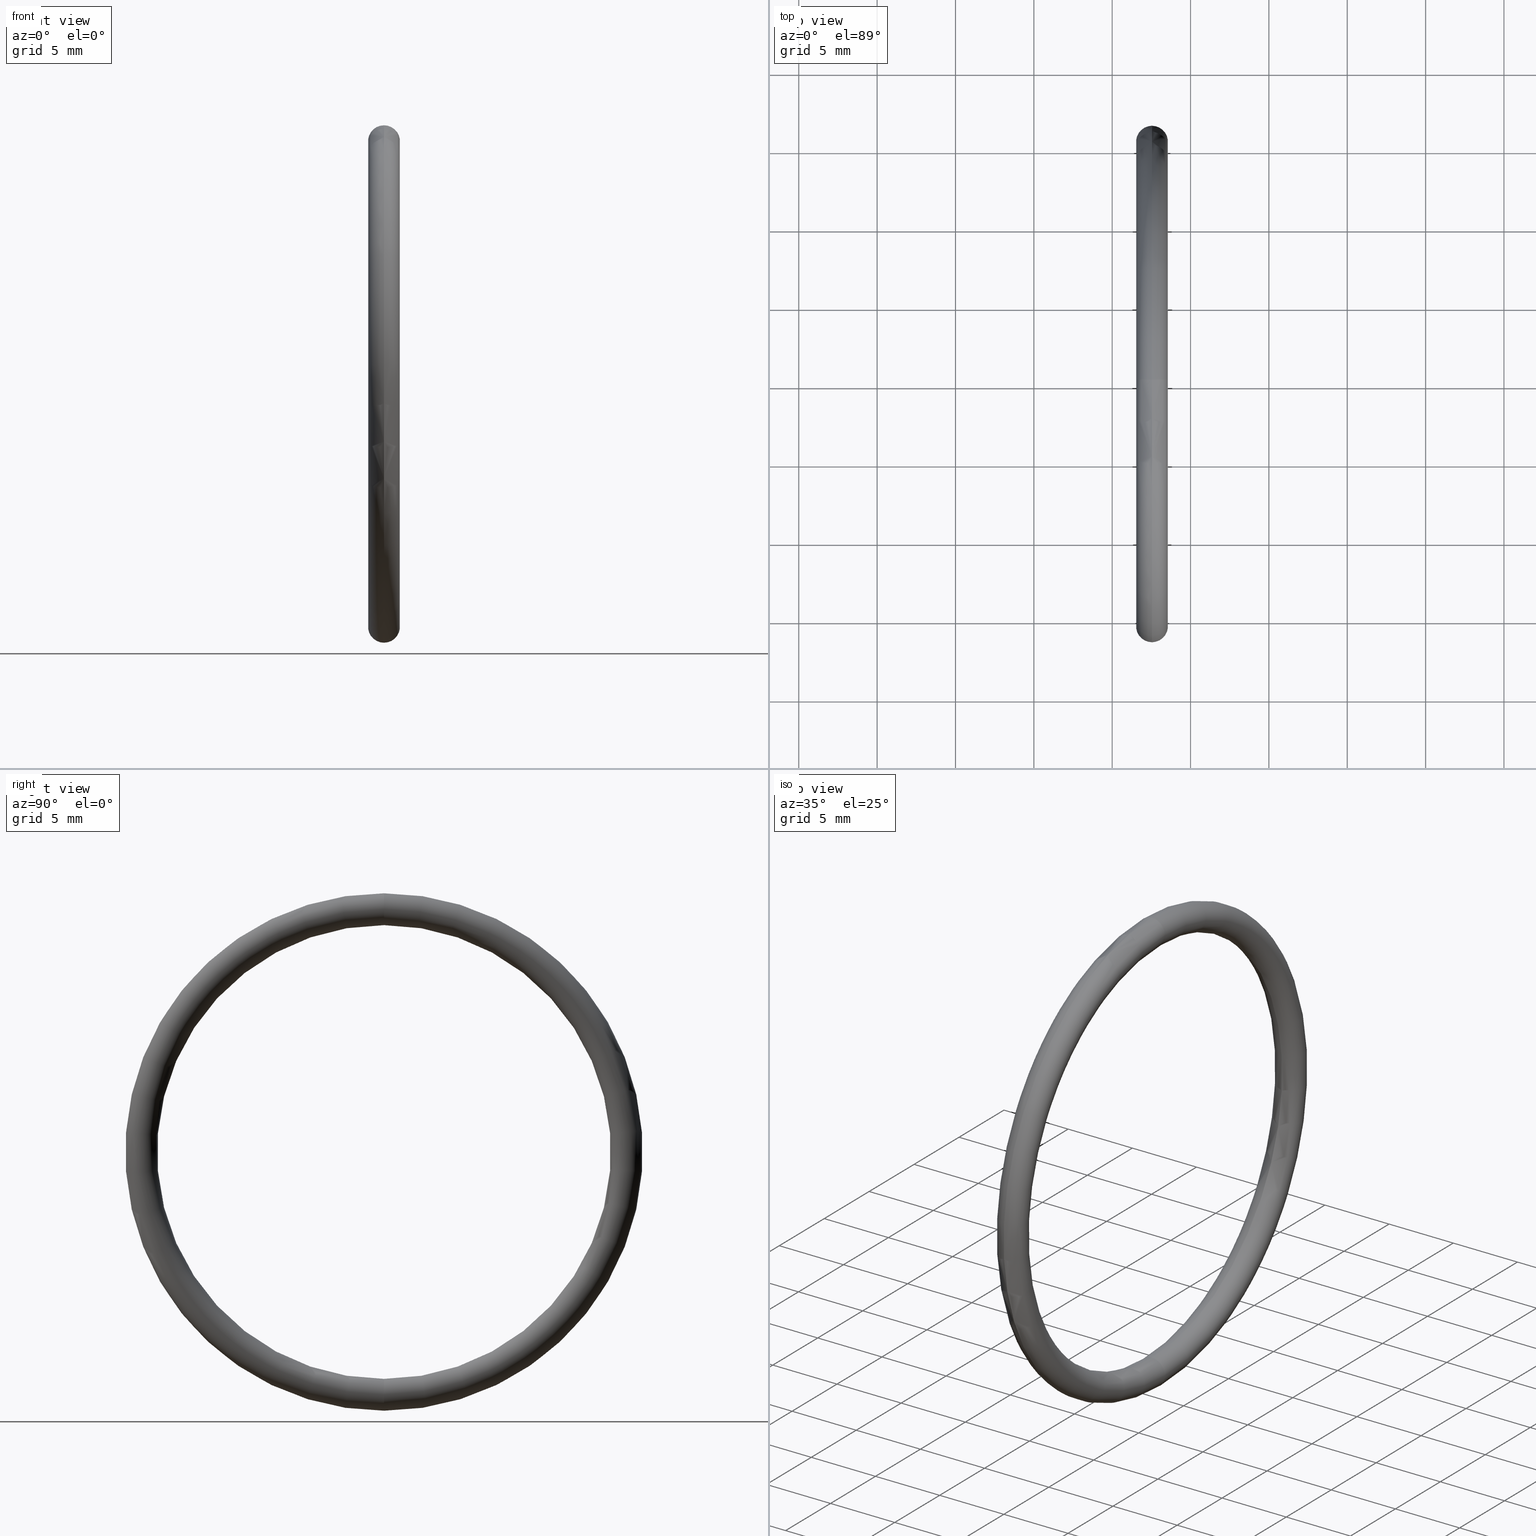
[diagram: canonical four-view strip — front | top / right | iso, engineering-drawing reading convention]
A machine part, canonical four-view strip (front | top / right | iso — engineering-drawing reading convention). The complete STEP part file that produces these views, byte-faithful:
ISO-10303-21;
HEADER;
FILE_DESCRIPTION (( 'STEP AP203' ),
    '1' );
FILE_NAME ('OR-10-BN.STEP',
    '2008-03-29T09:32:36',
    ( 'Baystate-05' ),
    ( 'BayState InfoTech' ),
    'SwSTEP 2.0',
    'SolidWorks 2007',
    '' );
FILE_SCHEMA (( 'CONFIG_CONTROL_DESIGN' ));
ENDSEC;

DATA;
#1 = EDGE_CURVE ( 'NONE', #60, #59, #43, .T. ) ;
#2 = ADVANCED_FACE ( 'NONE', ( #44 ), #15, .T. ) ;
#3 = EDGE_LOOP ( 'NONE', ( #58, #4, #63, #10 ) ) ;
#4 = ORIENTED_EDGE ( 'NONE', *, *, #25, .T. ) ;
#5 = EDGE_LOOP ( 'NONE', ( #6, #7, #18, #13 ) ) ;
#6 = ORIENTED_EDGE ( 'NONE', *, *, #23, .F. ) ;
#7 = ORIENTED_EDGE ( 'NONE', *, *, #17, .F. ) ;
#8 = ADVANCED_BREP_SHAPE_REPRESENTATION ( 'OR-10-BN', ( #19, #74 ), #9 ) ;
#9 =( GEOMETRIC_REPRESENTATION_CONTEXT ( 3 ) GLOBAL_UNCERTAINTY_ASSIGNED_CONTEXT ( ( #54 ) ) GLOBAL_UNIT_ASSIGNED_CONTEXT ( ( #57, #56, #55 ) ) REPRESENTATION_CONTEXT ( 'NONE', 'WORKASPACE' ) );
#10 = ORIENTED_EDGE ( 'NONE', *, *, #11, .F. ) ;
#11 = EDGE_CURVE ( 'NONE', #60, #65, #35, .T. ) ;
#12 = EDGE_LOOP ( 'NONE', ( #21, #22, #75, #76 ) ) ;
#13 = ORIENTED_EDGE ( 'NONE', *, *, #1, .T. ) ;
#14 = AXIS2_PLACEMENT_3D ( 'NONE', #16, #38, #37 ) ;
#15 = TOROIDAL_SURFACE ( 'NONE', #14, 0.6099999999999998800, 0.03999999999999996600 ) ;
#16 = CARTESIAN_POINT ( 'NONE',  ( 0.1000000000000000700, 0.0000000000000000000, 0.0000000000000000000 ) ) ;
#17 = EDGE_CURVE ( 'NONE', #65, #24, #100, .T. ) ;
#18 = ORIENTED_EDGE ( 'NONE', *, *, #77, .T. ) ;
#19 = MANIFOLD_SOLID_BREP ( 'NONE', #62 ) ;
#20 = ADVANCED_FACE ( 'NONE', ( #101 ), #70, .T. ) ;
#21 = ORIENTED_EDGE ( 'NONE', *, *, #64, .F. ) ;
#22 = ORIENTED_EDGE ( 'NONE', *, *, #23, .T. ) ;
#23 = EDGE_CURVE ( 'NONE', #24, #59, #53, .T. ) ;
#24 = VERTEX_POINT ( 'NONE', #48 ) ;
#25 = EDGE_CURVE ( 'NONE', #59, #24, #47, .T. ) ;
#26 = TOROIDAL_SURFACE ( 'NONE', #95, 0.6099999999999998800, 0.03999999999999996600 ) ;
#27 = FACE_OUTER_BOUND ( 'NONE', #3, .T. ) ;
#28 = DIRECTION ( 'NONE',  ( 0.0000000000000000000, 0.0000000000000000000, 1.000000000000000000 ) ) ;
#29 = DIRECTION ( 'NONE',  ( -1.000000000000000000, 0.0000000000000000000, 0.0000000000000000000 ) ) ;
#30 = CARTESIAN_POINT ( 'NONE',  ( 0.1000000000000000700, 0.0000000000000000000, 0.0000000000000000000 ) ) ;
#31 = AXIS2_PLACEMENT_3D ( 'NONE', #30, #29, #28 ) ;
#32 = DIRECTION ( 'NONE',  ( -1.000000000000000000, 0.0000000000000000000, 0.0000000000000000000 ) ) ;
#33 = CARTESIAN_POINT ( 'NONE',  ( 0.1000000000000000700, 0.0000000000000000000, 0.0000000000000000000 ) ) ;
#34 = AXIS2_PLACEMENT_3D ( 'NONE', #33, #32, #102 ) ;
#35 = CIRCLE ( 'NONE', #34, 0.5699999999999999500 ) ;
#36 = CARTESIAN_POINT ( 'NONE',  ( 0.1000000000000000700, 0.0000000000000000000, 0.6099999999999998800 ) ) ;
#37 = DIRECTION ( 'NONE',  ( 0.0000000000000000000, 0.0000000000000000000, 1.000000000000000000 ) ) ;
#38 = DIRECTION ( 'NONE',  ( -1.000000000000000000, 0.0000000000000000000, 0.0000000000000000000 ) ) ;
#39 = DIRECTION ( 'NONE',  ( 0.0000000000000000000, -1.224646799147351000E-016, 1.000000000000000000 ) ) ;
#40 = DIRECTION ( 'NONE',  ( 0.0000000000000000000, 1.000000000000000000, 1.224646799147353200E-016 ) ) ;
#41 = CARTESIAN_POINT ( 'NONE',  ( 0.1000000000000000700, 7.470345474798854000E-017, -0.6099999999999998800 ) ) ;
#42 = AXIS2_PLACEMENT_3D ( 'NONE', #41, #40, #39 ) ;
#43 = CIRCLE ( 'NONE', #42, 0.03999999999999998000 ) ;
#44 = FACE_OUTER_BOUND ( 'NONE', #103, .T. ) ;
#45 = ADVANCED_FACE ( 'NONE', ( #27 ), #26, .T. ) ;
#46 = EDGE_CURVE ( 'NONE', #59, #60, #91, .T. ) ;
#47 = CIRCLE ( 'NONE', #31, 0.6499999999999999100 ) ;
#48 = CARTESIAN_POINT ( 'NONE',  ( 0.1000000000000000700, 0.0000000000000000000, 0.6499999999999999100 ) ) ;
#49 = DIRECTION ( 'NONE',  ( 0.0000000000000000000, 0.0000000000000000000, 1.000000000000000000 ) ) ;
#50 = DIRECTION ( 'NONE',  ( -1.000000000000000000, 0.0000000000000000000, 0.0000000000000000000 ) ) ;
#51 = CARTESIAN_POINT ( 'NONE',  ( 0.1000000000000000700, 0.0000000000000000000, 0.0000000000000000000 ) ) ;
#52 = AXIS2_PLACEMENT_3D ( 'NONE', #51, #50, #49 ) ;
#53 = CIRCLE ( 'NONE', #52, 0.6499999999999999100 ) ;
#54 = UNCERTAINTY_MEASURE_WITH_UNIT (LENGTH_MEASURE( 1.000000000000000100E-005 ), #57, 'distance_accuracy_value', 'NONE');
#55 =( NAMED_UNIT ( * ) SI_UNIT ( $, .STERADIAN. ) SOLID_ANGLE_UNIT ( ) );
#56 =( NAMED_UNIT ( * ) PLANE_ANGLE_UNIT ( ) SI_UNIT ( $, .RADIAN. ) );
#57 =( CONVERSION_BASED_UNIT ( 'INCH', #107 ) LENGTH_UNIT ( ) NAMED_UNIT ( #108 ) );
#58 = ORIENTED_EDGE ( 'NONE', *, *, #46, .F. ) ;
#59 = VERTEX_POINT ( 'NONE', #87 ) ;
#60 = VERTEX_POINT ( 'NONE', #86 ) ;
#61 = ORIENTED_EDGE ( 'NONE', *, *, #1, .F. ) ;
#62 = CLOSED_SHELL ( 'NONE', ( #45, #20, #78, #2 ) ) ;
#63 = ORIENTED_EDGE ( 'NONE', *, *, #64, .T. ) ;
#64 = EDGE_CURVE ( 'NONE', #24, #65, #85, .T. ) ;
#65 = VERTEX_POINT ( 'NONE', #80 ) ;
#66 =( LENGTH_UNIT ( ) NAMED_UNIT ( * ) SI_UNIT ( $, .METRE. ) );
#67 = DIRECTION ( 'NONE',  ( 0.0000000000000000000, 0.0000000000000000000, 1.000000000000000000 ) ) ;
#68 = DIRECTION ( 'NONE',  ( -1.000000000000000000, 0.0000000000000000000, 0.0000000000000000000 ) ) ;
#69 = AXIS2_PLACEMENT_3D ( 'NONE', #71, #68, #67 ) ;
#70 = TOROIDAL_SURFACE ( 'NONE', #69, 0.6099999999999998800, 0.03999999999999996600 ) ;
#71 = CARTESIAN_POINT ( 'NONE',  ( 0.1000000000000000700, 0.0000000000000000000, 0.0000000000000000000 ) ) ;
#72 = DIRECTION ( 'NONE',  ( 1.000000000000000000, 0.0000000000000000000, 0.0000000000000000000 ) ) ;
#73 = DIRECTION ( 'NONE',  ( 0.0000000000000000000, 0.0000000000000000000, 1.000000000000000000 ) ) ;
#74 = AXIS2_PLACEMENT_3D ( 'NONE', #113, #73, #72 ) ;
#75 = ORIENTED_EDGE ( 'NONE', *, *, #46, .T. ) ;
#76 = ORIENTED_EDGE ( 'NONE', *, *, #77, .F. ) ;
#77 = EDGE_CURVE ( 'NONE', #65, #60, #119, .T. ) ;
#78 = ADVANCED_FACE ( 'NONE', ( #115 ), #114, .T. ) ;
#79 = CARTESIAN_POINT ( 'NONE',  ( 0.1000000000000000700, 0.0000000000000000000, 0.0000000000000000000 ) ) ;
#80 = CARTESIAN_POINT ( 'NONE',  ( 0.1000000000000000700, 0.0000000000000000000, 0.5699999999999999500 ) ) ;
#81 = DIRECTION ( 'NONE',  ( 0.0000000000000000000, 0.0000000000000000000, -1.000000000000000000 ) ) ;
#82 = DIRECTION ( 'NONE',  ( 0.0000000000000000000, -1.000000000000000000, 0.0000000000000000000 ) ) ;
#83 = CARTESIAN_POINT ( 'NONE',  ( 0.1000000000000000700, 0.0000000000000000000, 0.6099999999999998800 ) ) ;
#84 = AXIS2_PLACEMENT_3D ( 'NONE', #83, #82, #81 ) ;
#85 = CIRCLE ( 'NONE', #84, 0.03999999999999998000 ) ;
#86 = CARTESIAN_POINT ( 'NONE',  ( 0.1000000000000000700, 6.980486755139913800E-017, -0.5699999999999999500 ) ) ;
#87 = CARTESIAN_POINT ( 'NONE',  ( 0.1000000000000000700, 7.960204194457794200E-017, -0.6499999999999999100 ) ) ;
#88 = DIRECTION ( 'NONE',  ( 0.0000000000000000000, -1.224646799147351000E-016, 1.000000000000000000 ) ) ;
#89 = DIRECTION ( 'NONE',  ( 0.0000000000000000000, 1.000000000000000000, 1.224646799147353200E-016 ) ) ;
#90 = AXIS2_PLACEMENT_3D ( 'NONE', #96, #89, #88 ) ;
#91 = CIRCLE ( 'NONE', #90, 0.03999999999999998000 ) ;
#92 = DIRECTION ( 'NONE',  ( 0.0000000000000000000, 0.0000000000000000000, 1.000000000000000000 ) ) ;
#93 = DIRECTION ( 'NONE',  ( -1.000000000000000000, 0.0000000000000000000, 0.0000000000000000000 ) ) ;
#94 = CARTESIAN_POINT ( 'NONE',  ( 0.1000000000000000700, 0.0000000000000000000, 0.0000000000000000000 ) ) ;
#95 = AXIS2_PLACEMENT_3D ( 'NONE', #94, #93, #92 ) ;
#96 = CARTESIAN_POINT ( 'NONE',  ( 0.1000000000000000700, 7.470345474798854000E-017, -0.6099999999999998800 ) ) ;
#97 = DIRECTION ( 'NONE',  ( 0.0000000000000000000, 0.0000000000000000000, -1.000000000000000000 ) ) ;
#98 = DIRECTION ( 'NONE',  ( 0.0000000000000000000, -1.000000000000000000, 0.0000000000000000000 ) ) ;
#99 = AXIS2_PLACEMENT_3D ( 'NONE', #36, #98, #97 ) ;
#100 = CIRCLE ( 'NONE', #99, 0.03999999999999998000 ) ;
#101 = FACE_OUTER_BOUND ( 'NONE', #12, .T. ) ;
#102 = DIRECTION ( 'NONE',  ( 0.0000000000000000000, 0.0000000000000000000, 1.000000000000000000 ) ) ;
#103 = EDGE_LOOP ( 'NONE', ( #104, #61, #105, #106 ) ) ;
#104 = ORIENTED_EDGE ( 'NONE', *, *, #25, .F. ) ;
#105 = ORIENTED_EDGE ( 'NONE', *, *, #11, .T. ) ;
#106 = ORIENTED_EDGE ( 'NONE', *, *, #17, .T. ) ;
#107 = LENGTH_MEASURE_WITH_UNIT ( LENGTH_MEASURE( 0.02539999999999999900 ), #66 );
#108 = DIMENSIONAL_EXPONENTS ( 1.000000000000000000, 0.0000000000000000000, 0.0000000000000000000, 0.0000000000000000000, 0.0000000000000000000, 0.0000000000000000000, 0.0000000000000000000 ) ;
#109 = DIRECTION ( 'NONE',  ( 0.0000000000000000000, 0.0000000000000000000, 1.000000000000000000 ) ) ;
#110 = DIRECTION ( 'NONE',  ( -1.000000000000000000, 0.0000000000000000000, 0.0000000000000000000 ) ) ;
#111 = CARTESIAN_POINT ( 'NONE',  ( 0.1000000000000000700, 0.0000000000000000000, 0.0000000000000000000 ) ) ;
#112 = AXIS2_PLACEMENT_3D ( 'NONE', #111, #110, #109 ) ;
#113 = CARTESIAN_POINT ( 'NONE',  ( 0.0000000000000000000, 0.0000000000000000000, 0.0000000000000000000 ) ) ;
#114 = TOROIDAL_SURFACE ( 'NONE', #112, 0.6099999999999998800, 0.03999999999999996600 ) ;
#115 = FACE_OUTER_BOUND ( 'NONE', #5, .T. ) ;
#116 = DIRECTION ( 'NONE',  ( 0.0000000000000000000, 0.0000000000000000000, 1.000000000000000000 ) ) ;
#117 = DIRECTION ( 'NONE',  ( -1.000000000000000000, 0.0000000000000000000, 0.0000000000000000000 ) ) ;
#118 = AXIS2_PLACEMENT_3D ( 'NONE', #79, #117, #116 ) ;
#119 = CIRCLE ( 'NONE', #118, 0.5699999999999999500 ) ;
#120 = PERSON_AND_ORGANIZATION ( #182, #195 ) ;
#121 = APPROVAL_PERSON_ORGANIZATION ( #125, #123, #122 ) ;
#122 = APPROVAL_ROLE ( '' ) ;
#123 = APPROVAL ( #124, 'UNSPECIFIED' ) ;
#124 = APPROVAL_STATUS ( 'not_yet_approved' ) ;
#125 = PERSON_AND_ORGANIZATION ( #182, #195 ) ;
#126 = CALENDAR_DATE ( 2008, 29, 3 ) ;
#127 = LOCAL_TIME ( 15, 2, 36.00000000000000000, #128 ) ;
#128 = COORDINATED_UNIVERSAL_TIME_OFFSET ( 5, 30, .AHEAD. ) ;
#129 = CC_DESIGN_PERSON_AND_ORGANIZATION_ASSIGNMENT ( #131, #130, ( #154 ) ) ;
#130 = PERSON_AND_ORGANIZATION_ROLE ( 'classification_officer' ) ;
#131 = PERSON_AND_ORGANIZATION ( #182, #195 ) ;
#132 = CC_DESIGN_SECURITY_CLASSIFICATION ( #154, ( #140 ) ) ;
#133 = CC_DESIGN_APPROVAL ( #160, ( #154 ) ) ;
#134 = APPROVAL_DATE_TIME ( #135, #160 ) ;
#135 = DATE_AND_TIME ( #136, #137 ) ;
#136 = CALENDAR_DATE ( 2008, 29, 3 ) ;
#137 = LOCAL_TIME ( 15, 2, 36.00000000000000000, #138 ) ;
#138 = COORDINATED_UNIVERSAL_TIME_OFFSET ( 5, 30, .AHEAD. ) ;
#139 = APPROVAL_PERSON_ORGANIZATION ( #162, #160, #159 ) ;
#140 = PRODUCT_DEFINITION_FORMATION_WITH_SPECIFIED_SOURCE ( 'ANY', '', #183, .NOT_KNOWN. ) ;
#141 = CC_DESIGN_DATE_AND_TIME_ASSIGNMENT ( #143, #142, ( #192 ) ) ;
#142 = DATE_TIME_ROLE ( 'creation_date' ) ;
#143 = DATE_AND_TIME ( #144, #145 ) ;
#144 = CALENDAR_DATE ( 2008, 29, 3 ) ;
#145 = LOCAL_TIME ( 15, 2, 36.00000000000000000, #186 ) ;
#146 = CC_DESIGN_APPROVAL ( #171, ( #192 ) ) ;
#147 = APPROVAL_DATE_TIME ( #148, #171 ) ;
#148 = DATE_AND_TIME ( #149, #167 ) ;
#149 = CALENDAR_DATE ( 2008, 29, 3 ) ;
#150 = SHAPE_DEFINITION_REPRESENTATION ( #184, #8 ) ;
#151 = MECHANICAL_CONTEXT ( 'NONE', #153, 'mechanical' ) ;
#152 = APPLICATION_PROTOCOL_DEFINITION ( 'international standard', 'config_control_design', 1994, #153 ) ;
#153 = APPLICATION_CONTEXT ( 'configuration controlled 3d designs of mechanical parts and assemblies' ) ;
#154 = SECURITY_CLASSIFICATION ( '', '', #155 ) ;
#155 = SECURITY_CLASSIFICATION_LEVEL ( 'unclassified' ) ;
#156 = CC_DESIGN_PERSON_AND_ORGANIZATION_ASSIGNMENT ( #158, #157, ( #140 ) ) ;
#157 = PERSON_AND_ORGANIZATION_ROLE ( 'design_supplier' ) ;
#158 = PERSON_AND_ORGANIZATION ( #182, #195 ) ;
#159 = APPROVAL_ROLE ( '' ) ;
#160 = APPROVAL ( #161, 'UNSPECIFIED' ) ;
#161 = APPROVAL_STATUS ( 'not_yet_approved' ) ;
#162 = PERSON_AND_ORGANIZATION ( #182, #195 ) ;
#163 = CC_DESIGN_DATE_AND_TIME_ASSIGNMENT ( #165, #164, ( #154 ) ) ;
#164 = DATE_TIME_ROLE ( 'classification_date' ) ;
#165 = DATE_AND_TIME ( #126, #127 ) ;
#166 = PERSON_AND_ORGANIZATION_ROLE ( 'design_owner' ) ;
#167 = LOCAL_TIME ( 15, 2, 36.00000000000000000, #168 ) ;
#168 = COORDINATED_UNIVERSAL_TIME_OFFSET ( 5, 30, .AHEAD. ) ;
#169 = APPROVAL_PERSON_ORGANIZATION ( #173, #171, #170 ) ;
#170 = APPROVAL_ROLE ( '' ) ;
#171 = APPROVAL ( #172, 'UNSPECIFIED' ) ;
#172 = APPROVAL_STATUS ( 'not_yet_approved' ) ;
#173 = PERSON_AND_ORGANIZATION ( #182, #195 ) ;
#174 = CC_DESIGN_PERSON_AND_ORGANIZATION_ASSIGNMENT ( #120, #166, ( #183 ) ) ;
#175 = PERSON_AND_ORGANIZATION ( #182, #195 ) ;
#176 = CC_DESIGN_APPROVAL ( #123, ( #140 ) ) ;
#177 = APPROVAL_DATE_TIME ( #178, #123 ) ;
#178 = DATE_AND_TIME ( #179, #180 ) ;
#179 = CALENDAR_DATE ( 2008, 29, 3 ) ;
#180 = LOCAL_TIME ( 15, 2, 36.00000000000000000, #181 ) ;
#181 = COORDINATED_UNIVERSAL_TIME_OFFSET ( 5, 30, .AHEAD. ) ;
#182 = PERSON ( 'UNSPECIFIED', 'UNSPECIFIED', 'UNSPECIFIED', ('UNSPECIFIED'), ('UNSPECIFIED'), ('UNSPECIFIED') ) ;
#183 = PRODUCT ( 'OR-10-BN', 'OR-10-BN', '', ( #151 ) ) ;
#184 = PRODUCT_DEFINITION_SHAPE ( 'NONE', 'NONE',  #192 ) ;
#185 = PRODUCT_RELATED_PRODUCT_CATEGORY ( 'detail', '', ( #183 ) ) ;
#186 = COORDINATED_UNIVERSAL_TIME_OFFSET ( 5, 30, .AHEAD. ) ;
#187 = CC_DESIGN_PERSON_AND_ORGANIZATION_ASSIGNMENT ( #189, #188, ( #192 ) ) ;
#188 = PERSON_AND_ORGANIZATION_ROLE ( 'creator' ) ;
#189 = PERSON_AND_ORGANIZATION ( #182, #195 ) ;
#190 = CC_DESIGN_PERSON_AND_ORGANIZATION_ASSIGNMENT ( #175, #191, ( #140 ) ) ;
#191 = PERSON_AND_ORGANIZATION_ROLE ( 'creator' ) ;
#192 = PRODUCT_DEFINITION ( 'UNKNOWN', '', #140, #193 ) ;
#193 = DESIGN_CONTEXT ( 'detailed design', #196, 'design' ) ;
#194 = APPLICATION_PROTOCOL_DEFINITION ( 'international standard', 'config_control_design', 1994, #196 ) ;
#195 = ORGANIZATION ( 'UNSPECIFIED', 'UNSPECIFIED', '' ) ;
#196 = APPLICATION_CONTEXT ( 'configuration controlled 3d designs of mechanical parts and assemblies' ) ;
ENDSEC;
END-ISO-10303-21;
